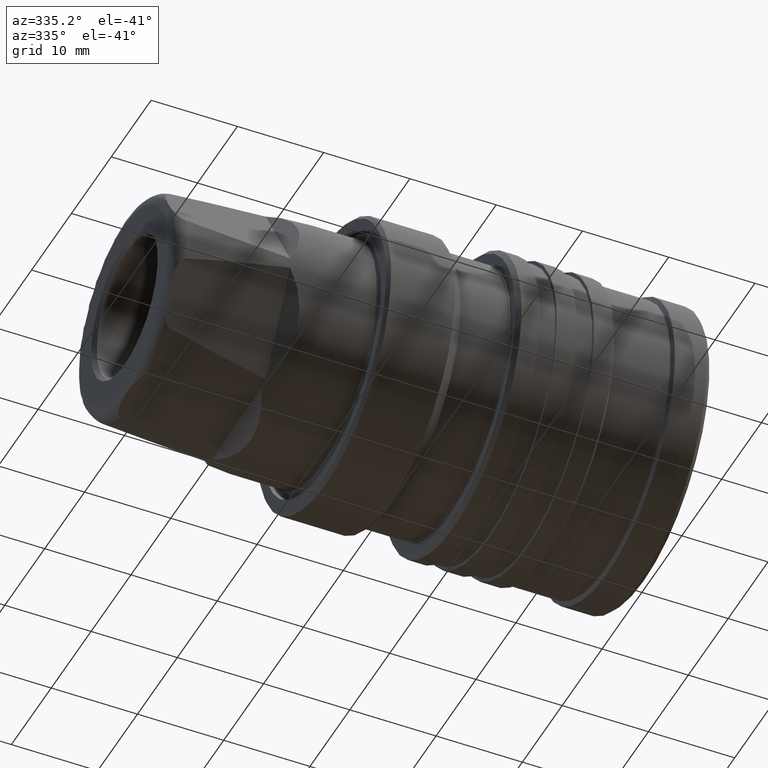
[diagram: clean part render]
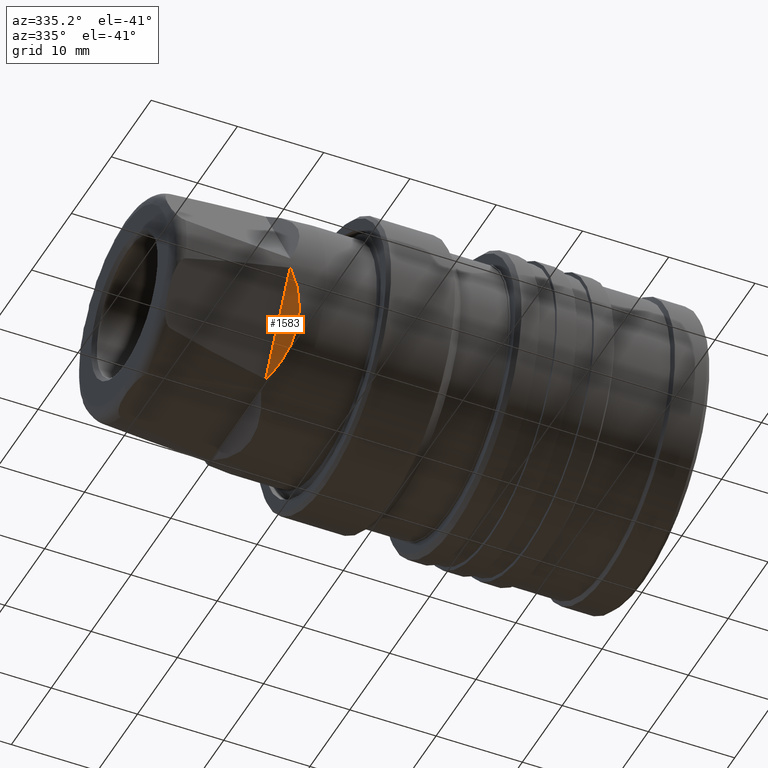
[diagram: same view with one face highlighted and labeled with its STEP entity id]
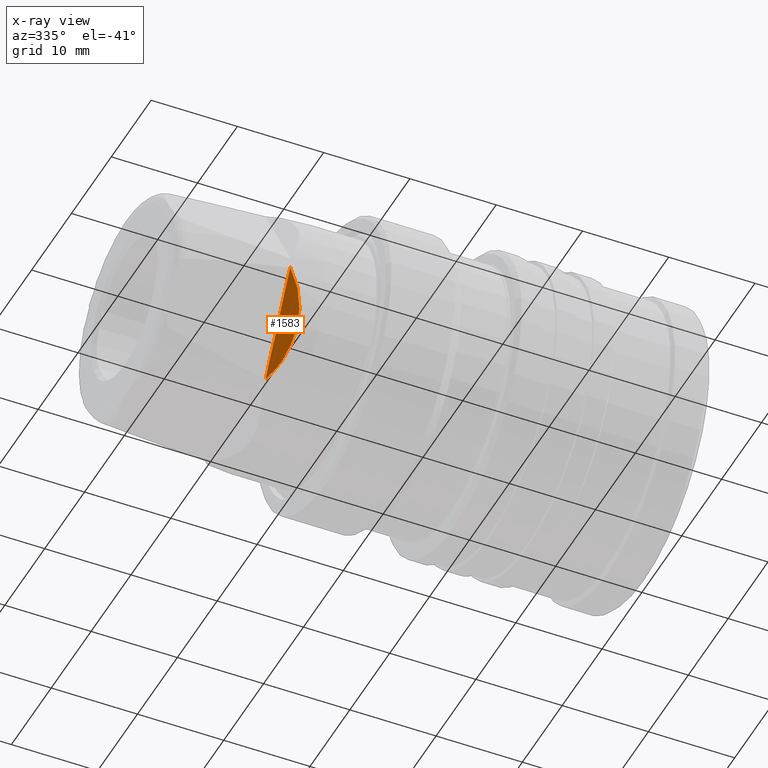
[diagram: x-ray of the same camera — body ghosted, the highlighted face saturated]
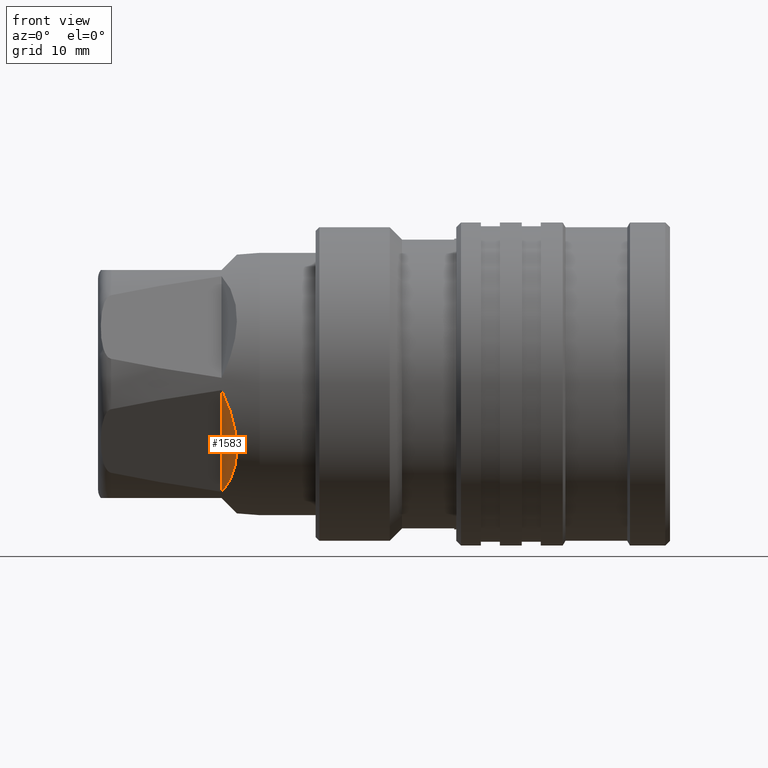
[diagram: same view with one face highlighted and labeled with its STEP entity id]
A machine part, auxiliary view. The second image highlights one B-rep face of the part: STEP entity #1583.
The next image is the same camera in x-ray: the body ghosted, the highlighted face saturated — about 0% of this face is hidden behind the body in this view.
A second angle (front view) of the same face is appended — the face is thin or edge-on in the first view.
In plain terms, the highlighted planar face has unit normal (0.7071, 0.6124, 0.3536).
Its self-contained STEP definition (entity closure, byte-faithful):
#698 = EDGE_LOOP ( 'NONE', ( #4493, #4492 ) ) ;
#1305 = CARTESIAN_POINT ( 'NONE',  ( 13.00000000000000000, -7.306400963539809700, -11.34494231067884100 ) ) ;
#1583 = ADVANCED_FACE ( 'NONE', ( #4588 ), #3094, .F. ) ;
#1763 = EDGE_CURVE ( 'NONE', #3209, #1789, #4119, .T. ) ;
#1789 = VERTEX_POINT ( 'NONE', #1305 ) ;
#2362 = DIRECTION ( 'NONE',  ( 0.0000000000000000000, -0.4999999999999998900, 0.8660254037844387100 ) ) ;
#2363 = CARTESIAN_POINT ( 'NONE',  ( 13.00000000000000000, -6.928203230275509700, -12.00000000000000000 ) ) ;
#2657 = CARTESIAN_POINT ( 'NONE',  ( 13.00000000000000000, -13.47820872728672000, -0.6550576893211499400 ) ) ;
#2790 = AXIS2_PLACEMENT_3D ( 'NONE', #3097, #3095, #3093 ) ;
#3093 = DIRECTION ( 'NONE',  ( -0.6546536707079756400, 0.7559289460184557300, 0.0000000000000000000 ) ) ;
#3094 = PLANE ( 'NONE',  #2790 ) ;
#3095 = DIRECTION ( 'NONE',  ( 0.7071067811865490200, 0.6123724356957934700, 0.3535533905932729000 ) ) ;
#3097 = CARTESIAN_POINT ( 'NONE',  ( 13.00000000000000000, -6.928203230275509700, -12.00000000000000000 ) ) ;
#3209 = VERTEX_POINT ( 'NONE', #2657 ) ;
#3529 = VECTOR ( 'NONE', #2362, 1000.000000000000000 ) ;
#3614 = LINE ( 'NONE', #2363, #3529 ) ;
#4035 = CARTESIAN_POINT ( 'NONE',  ( 13.00000000000000000, -13.47820872728672000, -0.6550576893211499400 ) ) ;
#4042 = CARTESIAN_POINT ( 'NONE',  ( 15.20737585921920700, -11.17944006070393000, -9.051393533128376100 ) ) ;
#4046 = CARTESIAN_POINT ( 'NONE',  ( 15.20737585921921000, -13.42845676969132300, -5.155982326090853700 ) ) ;
#4049 = CARTESIAN_POINT ( 'NONE',  ( 13.00000000000000000, -7.306400963539809700, -11.34494231067884100 ) ) ;
#4119 =( BOUNDED_CURVE ( )  B_SPLINE_CURVE ( 3, ( #4035, #4046, #4042, #4049 ),
 .UNSPECIFIED., .F., .F. ) 
 B_SPLINE_CURVE_WITH_KNOTS ( ( 4, 4 ),
 ( 5.771892122136058800, 6.794478492223113600 ),
 .UNSPECIFIED. ) 
 CURVE ( )  GEOMETRIC_REPRESENTATION_ITEM ( )  RATIONAL_B_SPLINE_CURVE ( ( 1.000000000000000000, 0.9147416497001374900, 0.9147416497001374900, 1.000000000000000000 ) ) 
 REPRESENTATION_ITEM ( '' )  );
#4124 = EDGE_CURVE ( 'NONE', #1789, #3209, #3614, .T. ) ;
#4492 = ORIENTED_EDGE ( 'NONE', *, *, #1763, .F. ) ;
#4493 = ORIENTED_EDGE ( 'NONE', *, *, #4124, .F. ) ;
#4588 = FACE_OUTER_BOUND ( 'NONE', #698, .T. ) ;